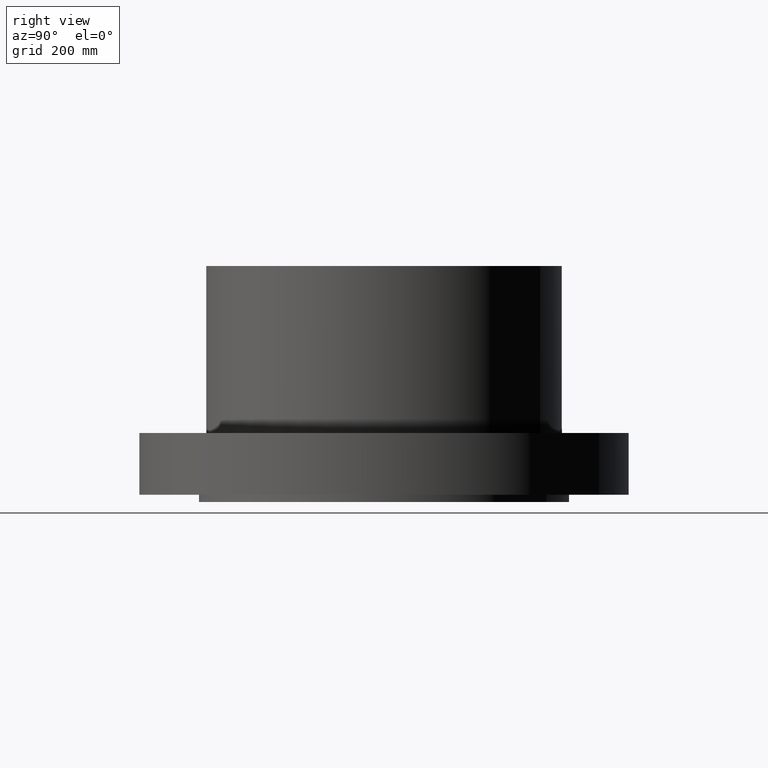
[diagram: clean part render]
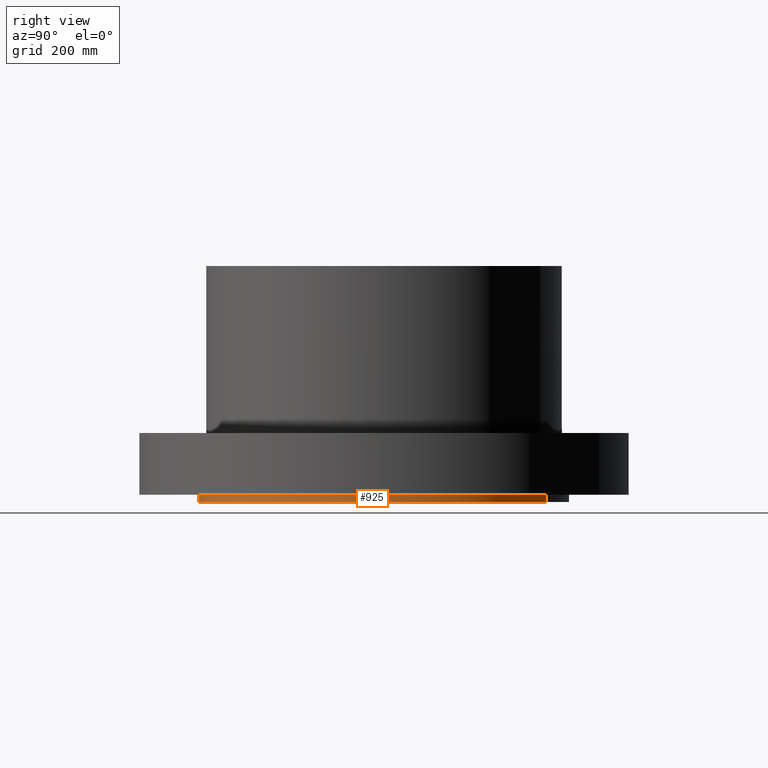
[diagram: same view with one face highlighted and labeled with its STEP entity id]
A machine part, right view. The second image highlights one B-rep face of the part: STEP entity #925.
In plain terms, the highlighted cylindrical surface (partial cylindrical patch) has radius 323.85 mm, axis along (0, 0, -1).
Its self-contained STEP definition (entity closure, byte-faithful):
#109=AXIS2_PLACEMENT_3D('Circle Axis2P3D',#107,#108,$) ;
#885=AXIS2_PLACEMENT_3D('Circle Axis2P3D',#883,#884,$) ;
#900=AXIS2_PLACEMENT_3D('Cylinder Axis2P3D',#897,#898,#899) ;
#107=CARTESIAN_POINT('Axis2P3D Location',(0.,0.,0.)) ;
#111=CARTESIAN_POINT('Vertex',(6.11267561723,11.1891776641,0.)) ;
#113=CARTESIAN_POINT('Vertex',(-6.11267561723,-11.1891776641,0.)) ;
#878=CARTESIAN_POINT('Vertex',(-6.11267561723,-11.1891776641,-0.500000000002)) ;
#880=CARTESIAN_POINT('Vertex',(6.11267561723,11.1891776641,-0.500000000002)) ;
#883=CARTESIAN_POINT('Axis2P3D Location',(0.,0.,-0.500000000002)) ;
#897=CARTESIAN_POINT('Axis2P3D Location',(0.,0.,7.62500000003)) ;
#902=CARTESIAN_POINT('Line Origine',(-6.11267561723,-11.1891776641,-0.250000000001)) ;
#907=CARTESIAN_POINT('Line Origine',(6.11267561723,11.1891776641,-0.250000000001)) ;
#108=DIRECTION('Axis2P3D Direction',(0.,0.,-0.0393700787402)) ;
#884=DIRECTION('Axis2P3D Direction',(0.,0.,-0.0393700787402)) ;
#898=DIRECTION('Axis2P3D Direction',(0.,0.,-0.0393700787402)) ;
#899=DIRECTION('Axis2P3D XDirection',(0.0188750212049,0.0345504945626,0.)) ;
#903=DIRECTION('Vector Direction',(0.,0.,-0.0393700787402)) ;
#908=DIRECTION('Vector Direction',(0.,0.,-0.0393700787402)) ;
#904=VECTOR('Line Direction',#903,0.0393700787402) ;
#909=VECTOR('Line Direction',#908,0.0393700787402) ;
#920=ORIENTED_EDGE('',*,*,#887,.F.) ;
#921=ORIENTED_EDGE('',*,*,#911,.T.) ;
#922=ORIENTED_EDGE('',*,*,#115,.T.) ;
#923=ORIENTED_EDGE('',*,*,#906,.F.) ;
#925=ADVANCED_FACE('PartBody',(#924),#901,.T.) ;
#110=CIRCLE('generated circle',#109,12.7500000001) ;
#886=CIRCLE('generated circle',#885,12.7500000001) ;
#901=CYLINDRICAL_SURFACE('generated cylinder',#900,12.7500000001) ;
#115=EDGE_CURVE('',#112,#114,#110,.T.) ;
#887=EDGE_CURVE('',#881,#879,#886,.T.) ;
#906=EDGE_CURVE('',#879,#114,#905,.F.) ;
#911=EDGE_CURVE('',#881,#112,#910,.F.) ;
#919=EDGE_LOOP('',(#920,#921,#922,#923)) ;
#924=FACE_OUTER_BOUND('',#919,.T.) ;
#905=LINE('Line',#902,#904) ;
#910=LINE('Line',#907,#909) ;
#112=VERTEX_POINT('',#111) ;
#114=VERTEX_POINT('',#113) ;
#879=VERTEX_POINT('',#878) ;
#881=VERTEX_POINT('',#880) ;